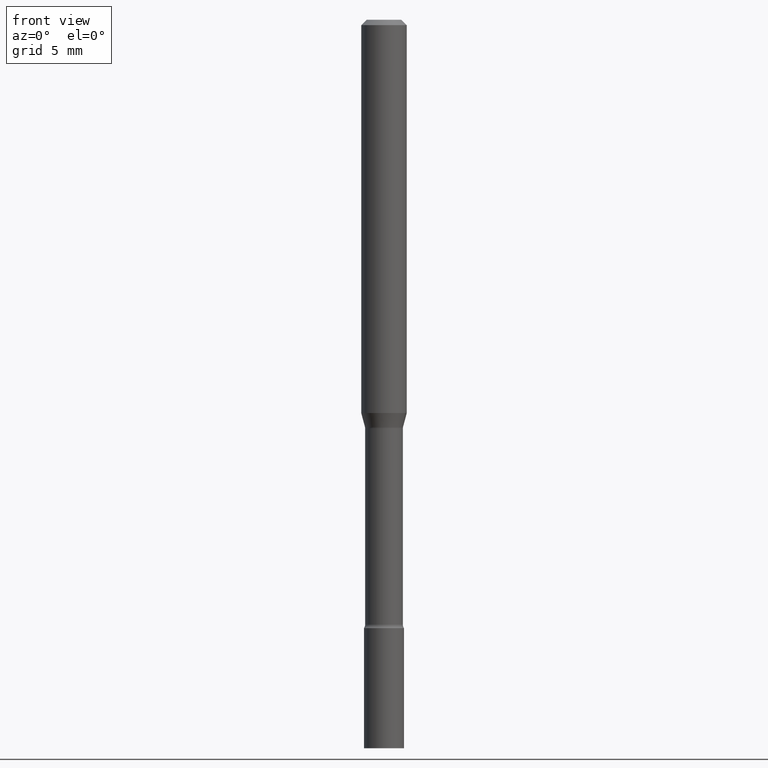
[diagram: clean part render]
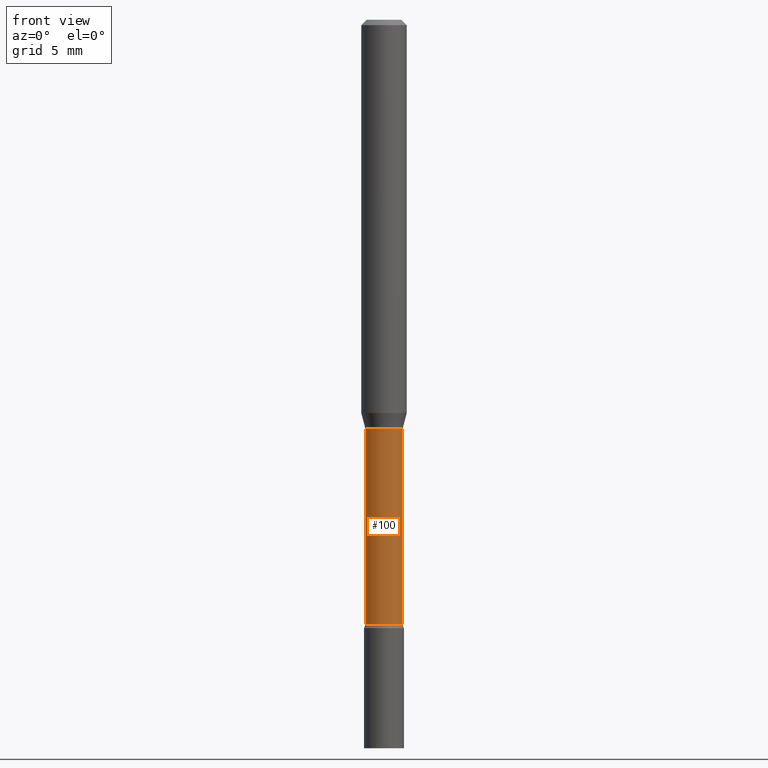
[diagram: same view with one face highlighted and labeled with its STEP entity id]
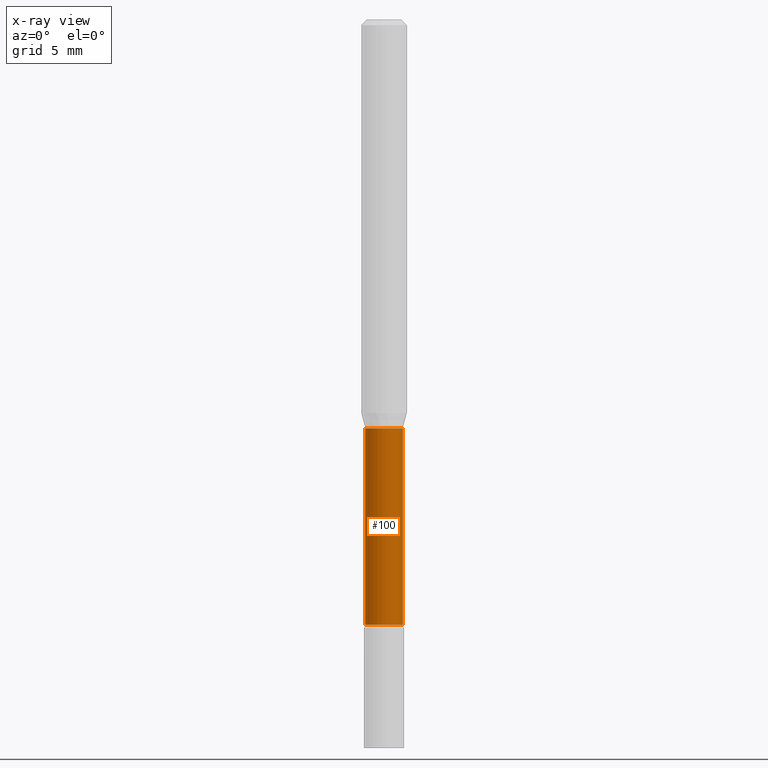
[diagram: x-ray of the same camera — body ghosted, the highlighted face saturated]
A machine part, front view. The second image highlights one B-rep face of the part: STEP entity #100.
The next image is the same camera in x-ray: the body ghosted, the highlighted face saturated — about 0% of this face is hidden behind the body in this view.
In plain terms, the highlighted cylindrical surface (edge-blend (fillet) strip) has radius 1.3132 mm, axis along (-0, 0, 1).
Its self-contained STEP definition (entity closure, byte-faithful):
#11 = CARTESIAN_POINT ( 'NONE',  ( 0.05169999999999999596, -4.278373203518779894E-15, -1.121974787463810852 ) ) ;
#29 = CIRCLE ( 'NONE', #64, 0.05169999999999999596 ) ;
#45 = EDGE_CURVE ( 'NONE', #446, #173, #29, .T. ) ;
#46 = DIRECTION ( 'NONE',  ( 1.000000000000000000, -6.982962677686266711E-15, 4.876176775795936353E-29 ) ) ;
#60 = VECTOR ( 'NONE', #358, 39.37007874015748143 ) ;
#64 = AXIS2_PLACEMENT_3D ( 'NONE', #295, #110, #338 ) ;
#65 = ORIENTED_EDGE ( 'NONE', *, *, #283, .T. ) ;
#78 = LINE ( 'NONE', #311, #427 ) ;
#86 = DIRECTION ( 'NONE',  ( -2.445468806185136877E-29, 3.491481338843145188E-15, 1.000000000000000000 ) ) ;
#97 = VERTEX_POINT ( 'NONE', #255 ) ;
#100 = ADVANCED_FACE ( 'NONE', ( #459 ), #268, .T. ) ;
#110 = DIRECTION ( 'NONE',  ( -2.445468806185136597E-29, 3.491481338843145583E-15, 1.000000000000000000 ) ) ;
#117 = CARTESIAN_POINT ( 'NONE',  ( 0.05169999999999999596, -6.159019543879958449E-15, -1.660613307291702645 ) ) ;
#121 = LINE ( 'NONE', #520, #60 ) ;
#130 = EDGE_CURVE ( 'NONE', #97, #446, #78, .T. ) ;
#152 = DIRECTION ( 'NONE',  ( 1.000000000000000000, -6.982962677686275388E-15, 0.000000000000000000 ) ) ;
#167 = AXIS2_PLACEMENT_3D ( 'NONE', #399, #309, #152 ) ;
#173 = VERTEX_POINT ( 'NONE', #11 ) ;
#219 = ORIENTED_EDGE ( 'NONE', *, *, #45, .F. ) ;
#246 = EDGE_CURVE ( 'NONE', #97, #305, #371, .T. ) ;
#255 = CARTESIAN_POINT ( 'NONE',  ( -0.05169999999999999596, -5.435312555127801674E-15, -1.660613307291702645 ) ) ;
#268 = CYLINDRICAL_SURFACE ( 'NONE', #384, 0.05169999999999999596 ) ;
#282 = EDGE_LOOP ( 'NONE', ( #457, #413, #65, #219 ) ) ;
#283 = EDGE_CURVE ( 'NONE', #305, #173, #121, .T. ) ;
#295 = CARTESIAN_POINT ( 'NONE',  ( 2.743754344068947711E-29, -3.917354033082399546E-15, -1.121974787463810852 ) ) ;
#305 = VERTEX_POINT ( 'NONE', #117 ) ;
#309 = DIRECTION ( 'NONE',  ( -2.445468806185136597E-29, 3.491481338843145583E-15, 1.000000000000000000 ) ) ;
#311 = CARTESIAN_POINT ( 'NONE',  ( -0.05169999999999999596, 3.673505943879717674E-16, -2.543089441661786117E-30 ) ) ;
#313 = CARTESIAN_POINT ( 'NONE',  ( -0.05169999999999999596, -4.490326608875016858E-15, -1.121974787463810852 ) ) ;
#323 = CARTESIAN_POINT ( 'NONE',  ( 0.000000000000000000, 0.000000000000000000, 0.000000000000000000 ) ) ;
#338 = DIRECTION ( 'NONE',  ( 1.000000000000000000, -6.982962677686265922E-15, 0.000000000000000000 ) ) ;
#358 = DIRECTION ( 'NONE',  ( -2.445468806185136877E-29, 3.491481338843145188E-15, 1.000000000000000000 ) ) ;
#371 = CIRCLE ( 'NONE', #167, 0.05169999999999999596 ) ;
#384 = AXIS2_PLACEMENT_3D ( 'NONE', #323, #489, #46 ) ;
#399 = CARTESIAN_POINT ( 'NONE',  ( 4.060978042117791300E-29, -5.798000373443578100E-15, -1.660613307291702645 ) ) ;
#413 = ORIENTED_EDGE ( 'NONE', *, *, #246, .T. ) ;
#427 = VECTOR ( 'NONE', #86, 39.37007874015748143 ) ;
#446 = VERTEX_POINT ( 'NONE', #313 ) ;
#457 = ORIENTED_EDGE ( 'NONE', *, *, #130, .F. ) ;
#459 = FACE_OUTER_BOUND ( 'NONE', #282, .T. ) ;
#489 = DIRECTION ( 'NONE',  ( -2.445468806185136597E-29, 3.491481338843145583E-15, 1.000000000000000000 ) ) ;
#520 = CARTESIAN_POINT ( 'NONE',  ( 0.05169999999999999596, -3.610191704363799542E-16, 2.520983393086498937E-30 ) ) ;